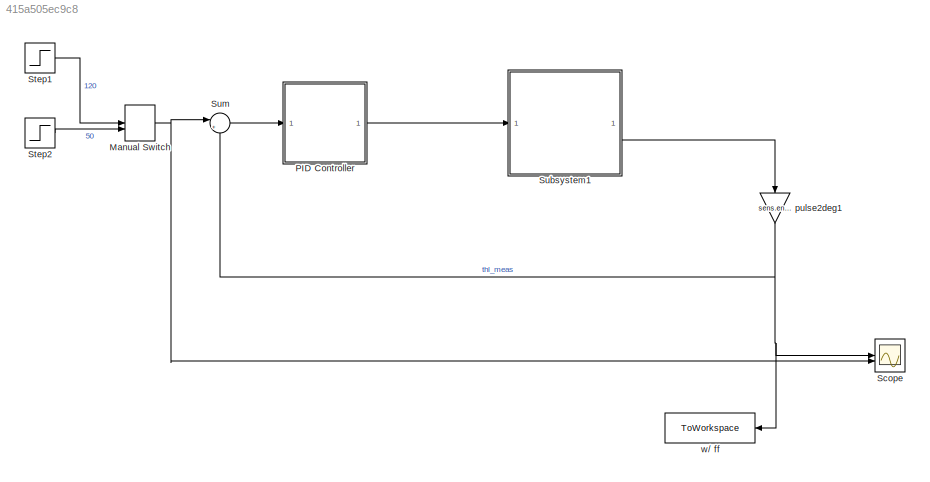
MODEL slx_415a505ec9c8
KIND model
CONFIG AbsTol = auto
CONFIG EnableMultiTasking = off
CONFIG FixedStep = 0.001
CONFIG MaxStep = auto
CONFIG MinStep = auto
CONFIG RelTol = 1e-3
CONFIG SampleTimeConstraint = Unconstrained
CONFIG SolverName = FixedStepAuto
CONFIG StartTime = 0.0
CONFIG StopTime = 5
BLOCK [ManualSwitch] Manual Switch
  CurrentSetting = 0
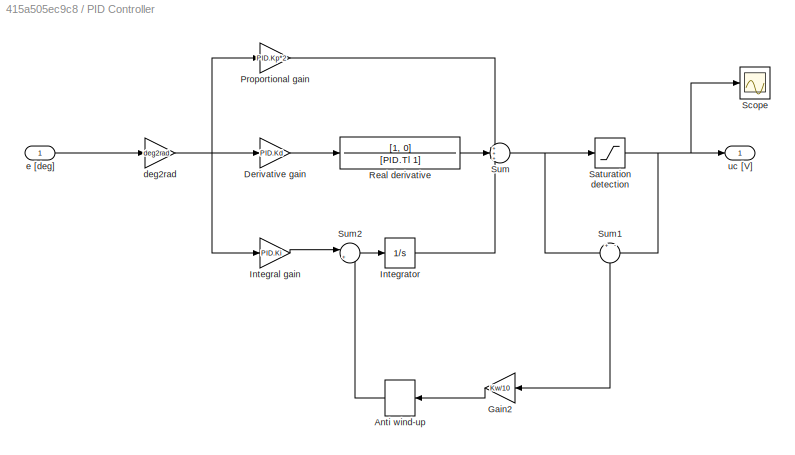
BLOCK [SubSystem] PID Controller
BLOCK [ManualSwitch] PID Controller/Anti wind-up
  CurrentSetting = 0
  NameLocation = top
BLOCK [Gain] PID Controller/Derivative gain
  Gain = PID.Kd
BLOCK [Gain] PID Controller/Gain2
  Gain = Kw/10
  NameLocation = top
BLOCK [Gain] PID Controller/Integral gain
  Gain = PID.Ki
BLOCK [Integrator] PID Controller/Integrator
BLOCK [Gain] PID Controller/Proportional gain
  Gain = PID.Kp*2
BLOCK [TransferFcn] PID Controller/Real derivative
  Denominator = [PID.Tl 1]
  Numerator = [1, 0]
BLOCK [Saturate] PID Controller/Saturation detection
  LowerLimit = -10
  UpperLimit = 10
BLOCK [Scope] PID Controller/Scope
  Floating = off
  NumInputPorts = 1
  ScopeSpecificationString = Simulink.scopes.TimeScopeBlockCfg('CurrentConfiguration', extmgr.ConfigurationSet(extmgr.Configuration('Core','General UI',true),extmgr.Configuration('Core','Source UI',true),extmgr.Configuration('Sources','WiredSimulink',true,'DataLoggingVariableName','ScopeData1'),extmgr.Configuration('Visuals','Time Domain',true,'SerializedDisplays',{struct('MinYLimReal','-8.61279','MaxYLimReal','77.5151','YLab...<+1427ch>
BLOCK [Sum] PID Controller/Sum
  Inputs = +++
BLOCK [Sum] PID Controller/Sum1
  Inputs = +|-
  NameLocation = left
BLOCK [Sum] PID Controller/Sum2
  Inputs = |+-
BLOCK [Gain] PID Controller/deg2rad
  Gain = deg2rad
BLOCK [Inport] PID Controller/e [deg]
BLOCK [Outport] PID Controller/uc [V]
BLOCK [Scope] Scope
  Floating = off
  NumInputPorts = 2
  ScopeSpecificationString = Simulink.scopes.TimeScopeBlockCfg('CurrentConfiguration', extmgr.ConfigurationSet(extmgr.Configuration('Core','General UI',true),extmgr.Configuration('Core','Source UI',true),extmgr.Configuration('Sources','WiredSimulink',true,'DataLoggingVariableName','ScopeData1'),extmgr.Configuration('Visuals','Time Domain',true,'SerializedDisplays',{struct('MinYLimReal','-7.74','MaxYLimReal','69.66','YLabelRea...<+1793ch>
BLOCK [Step] Step1
  After = 120
  SampleTime = 0
BLOCK [Step] Step2
  After = 50
  SampleTime = 0
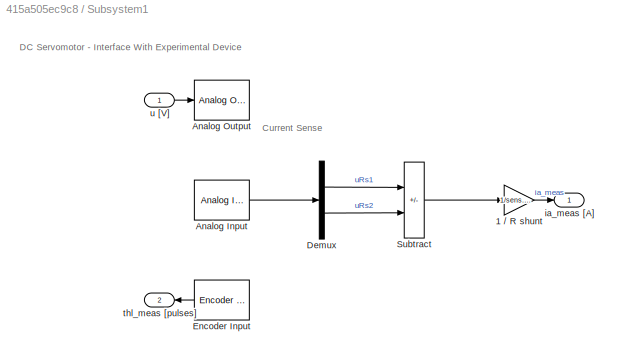
BLOCK [SubSystem] Subsystem1
BLOCK [Gain] Subsystem1/1 // R shunt
  Gain = 1/sens.curr.Rs
BLOCK [Reference] Subsystem1/Analog Input  REF=sldrtlib/Analog Input
  AttributesFormatString = National Instruments\nPCIe-6321 [auto]
  SourceBlock = sldrtlib/Analog Input
  SourceType = Simulink Desktop Real-Time Analog Input
BLOCK [Reference] Subsystem1/Analog Output  REF=sldrtlib/Analog Output
  AttributesFormatString = National Instruments\nPCIe-6321 [auto]
  SourceBlock = sldrtlib/Analog Output
  SourceType = Simulink Desktop Real-Time Analog Output
BLOCK [Demux] Subsystem1/Demux
  Outputs = 2
BLOCK [Reference] Subsystem1/Encoder Input  REF=sldrtlib/Encoder Input
  AttributesFormatString = National Instruments\nPCIe-6321 [auto]
  SourceBlock = sldrtlib/Encoder Input
  SourceType = Simulink Desktop Real-Time Encoder Input
BLOCK [Sum] Subsystem1/Subtract
  IconShape = rectangular
  Inputs = +-
BLOCK [Outport] Subsystem1/ia_meas [A]
BLOCK [Outport] Subsystem1/thl_meas [pulses]
  Port = 2
BLOCK [Inport] Subsystem1/u [V]
BLOCK [Sum] Sum
  Inputs = |+-
BLOCK [Gain] pulse2deg1
  Gain = sens.enc.pulse2deg
  NameLocation = left
BLOCK [ToWorkspace] w// ff
  FixptAsFi = on
  MaxDataPoints = inf
  SampleTime = -1
  SaveFormat = Structure With Time
  VariableName = pid_50_NOAW
ANNOTATION Subsystem1: Current Sense
ANNOTATION Subsystem1: DC Servomotor - Interface With Experimental Device
NET Manual Switch:1 -> Scope:2, Sum:1
LINE PID Controller/Anti wind-up:1 -> PID Controller/Sum2:2
LINE PID Controller/Derivative gain:1 -> PID Controller/Real derivative:1
LINE PID Controller/Gain2:1 -> PID Controller/Anti wind-up:1
LINE PID Controller/Integral gain:1 -> PID Controller/Sum2:1
LINE PID Controller/Integrator:1 -> PID Controller/Sum:3
LINE PID Controller/Proportional gain:1 -> PID Controller/Sum:1
LINE PID Controller/Real derivative:1 -> PID Controller/Sum:2
NET PID Controller/Saturation detection:1 -> PID Controller/Scope:1, PID Controller/Sum1:2, PID Controller/uc [V]:1
LINE PID Controller/Sum1:1 -> PID Controller/Gain2:1
LINE PID Controller/Sum2:1 -> PID Controller/Integrator:1
NET PID Controller/Sum:1 -> PID Controller/Saturation detection:1, PID Controller/Sum1:1
NET PID Controller/deg2rad:1 -> PID Controller/Derivative gain:1, PID Controller/Integral gain:1, PID Controller/Proportional gain:1
LINE PID Controller/e [deg]:1 -> PID Controller/deg2rad:1
LINE PID Controller:1 -> Subsystem1:1
LINE Step1:1 -> Manual Switch:1
LINE Step2:1 -> Manual Switch:2
LINE Subsystem1/1 // R shunt:1 -> Subsystem1/ia_meas [A]:1
LINE Subsystem1/Analog Input:1 -> Subsystem1/Demux:1
LINE Subsystem1/Demux:1 -> Subsystem1/Subtract:1
LINE Subsystem1/Demux:2 -> Subsystem1/Subtract:2
LINE Subsystem1/Encoder Input:1 -> Subsystem1/thl_meas [pulses]:1
LINE Subsystem1/Subtract:1 -> Subsystem1/1 // R shunt:1
LINE Subsystem1/u [V]:1 -> Subsystem1/Analog Output:1
LINE Subsystem1:2 -> pulse2deg1:1
LINE Sum:1 -> PID Controller:1
NET pulse2deg1:1 -> Scope:1, Sum:2, w// ff:1
note: NET lines group one-source signal fan-out (src -> all destinations, sorted); 1:1 wires keep LINE
